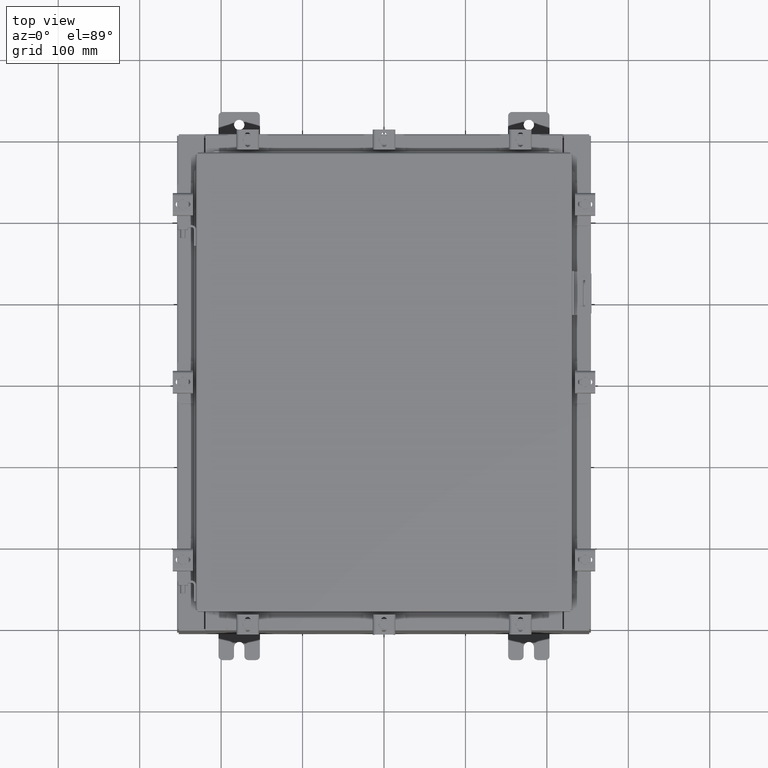
[diagram: clean part render]
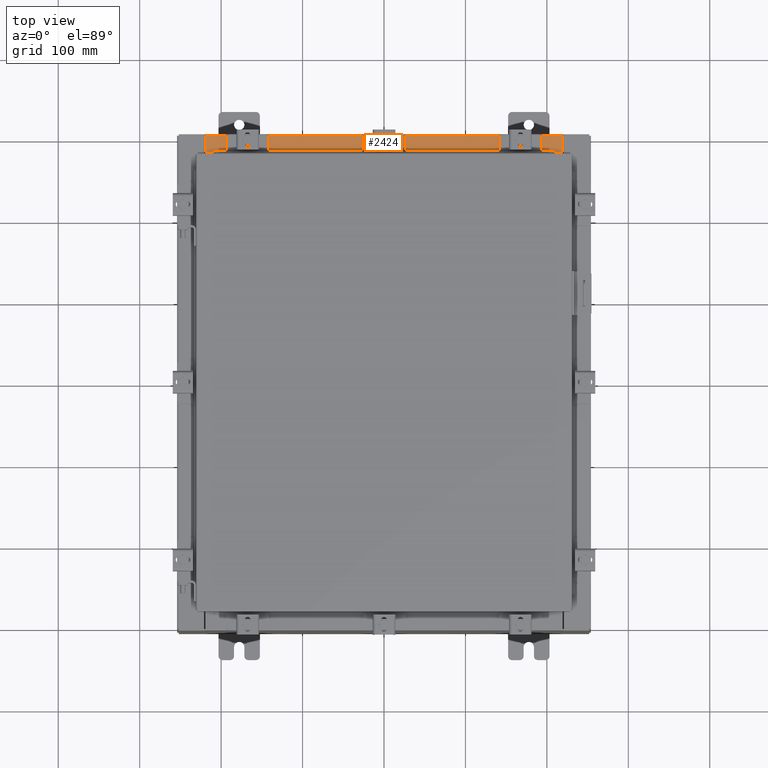
[diagram: same view with one face highlighted and labeled with its STEP entity id]
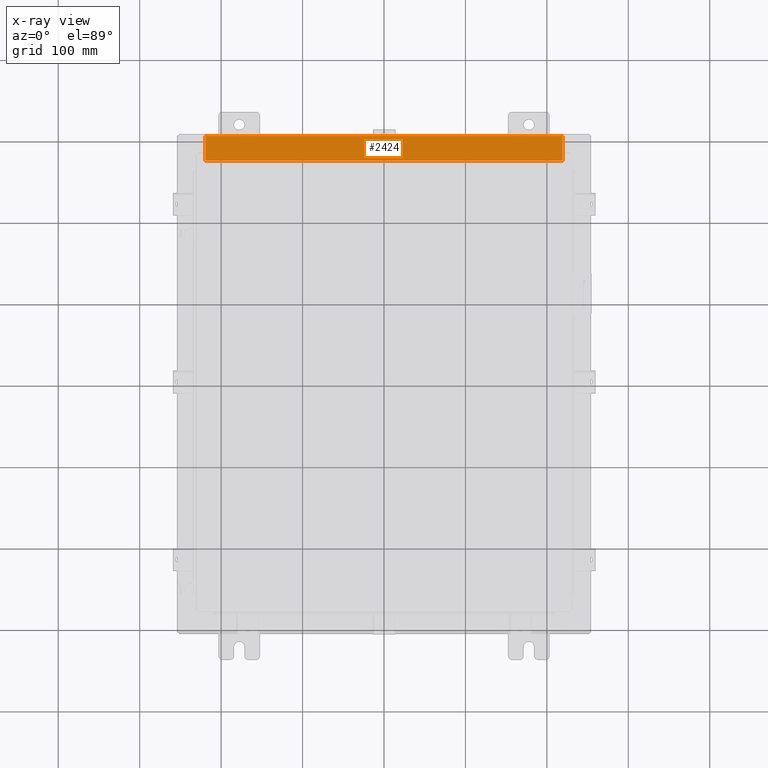
[diagram: x-ray of the same camera — body ghosted, the highlighted face saturated]
A machine part, top view. The second image highlights one B-rep face of the part: STEP entity #2424.
The next image is the same camera in x-ray: the body ghosted, the highlighted face saturated — about 0% of this face is hidden behind the body in this view.
In plain terms, the highlighted planar face has unit normal (0, 0, 1).
Its self-contained STEP definition (entity closure, byte-faithful):
#27 = CARTESIAN_POINT ( 'NONE',  ( -8.637200000000000000, -0.08770000000000081900, 5.000000000000000000 ) ) ;
#792 = DIRECTION ( 'NONE',  ( -0.0000000000000000000, 1.000000000000000000, -3.566381192773190000E-015 ) ) ;
#872 = CARTESIAN_POINT ( 'NONE',  ( 0.0000000000000000000, 1.782631094477737600E-014, 5.000000000000000000 ) ) ;
#918 = VERTEX_POINT ( 'NONE', #9299 ) ;
#1785 = EDGE_CURVE ( 'NONE', #10379, #3975, #16592, .T. ) ;
#1903 = CARTESIAN_POINT ( 'NONE',  ( 5.547702242495411600E-018, -0.08770000000000081900, 5.000000000000000000 ) ) ;
#2424 = ADVANCED_FACE ( 'NONE', ( #10185 ), #2620, .T. ) ;
#2620 = PLANE ( 'NONE',  #5874 ) ;
#3067 = ORIENTED_EDGE ( 'NONE', *, *, #16973, .F. ) ;
#3350 = VERTEX_POINT ( 'NONE', #27 ) ;
#3975 = VERTEX_POINT ( 'NONE', #11737 ) ;
#5874 = AXIS2_PLACEMENT_3D ( 'NONE', #872, #7846, #14825 ) ;
#7514 = CARTESIAN_POINT ( 'NONE',  ( 8.637200000000000000, -1.287299999999999900, 5.000000000000003600 ) ) ;
#7590 = VECTOR ( 'NONE', #13153, 39.37007874015748100 ) ;
#7846 = DIRECTION ( 'NONE',  ( 0.0000000000000000000, 3.566381192773190000E-015, 1.000000000000000000 ) ) ;
#8909 = ORIENTED_EDGE ( 'NONE', *, *, #16676, .T. ) ;
#9299 = CARTESIAN_POINT ( 'NONE',  ( 8.637200000000000000, -0.08770000000000047200, 5.000000000000000000 ) ) ;
#9922 = ORIENTED_EDGE ( 'NONE', *, *, #1785, .F. ) ;
#10185 = FACE_OUTER_BOUND ( 'NONE', #19269, .T. ) ;
#10379 = VERTEX_POINT ( 'NONE', #19011 ) ;
#10808 = VECTOR ( 'NONE', #792, 39.37007874015748100 ) ;
#11327 = LINE ( 'NONE', #14753, #10808 ) ;
#11391 = CARTESIAN_POINT ( 'NONE',  ( 8.637200000000000000, -1.300299999999999800, 5.000000000000004400 ) ) ;
#11737 = CARTESIAN_POINT ( 'NONE',  ( -8.637200000000000000, -1.287299999999999200, 5.000000000000004400 ) ) ;
#11923 = LINE ( 'NONE', #1903, #21237 ) ;
#12309 = DIRECTION ( 'NONE',  ( -1.000000000000000000, 0.0000000000000000000, 0.0000000000000000000 ) ) ;
#12739 = LINE ( 'NONE', #11391, #7590 ) ;
#13153 = DIRECTION ( 'NONE',  ( -0.0000000000000000000, -1.000000000000000000, 3.566381192773190000E-015 ) ) ;
#14753 = CARTESIAN_POINT ( 'NONE',  ( -8.637200000000000000, -0.07469999999999973900, 5.000000000000000000 ) ) ;
#14825 = DIRECTION ( 'NONE',  ( 0.0000000000000000000, -1.000000000000000000, 3.566381192773190000E-015 ) ) ;
#16592 = LINE ( 'NONE', #7514, #20684 ) ;
#16676 = EDGE_CURVE ( 'NONE', #918, #3350, #11923, .T. ) ;
#16973 = EDGE_CURVE ( 'NONE', #918, #10379, #12739, .T. ) ;
#17907 = ORIENTED_EDGE ( 'NONE', *, *, #20058, .F. ) ;
#19011 = CARTESIAN_POINT ( 'NONE',  ( 8.637200000000000000, -1.287299999999999900, 5.000000000000004400 ) ) ;
#19269 = EDGE_LOOP ( 'NONE', ( #17907, #9922, #3067, #8909 ) ) ;
#20058 = EDGE_CURVE ( 'NONE', #3975, #3350, #11327, .T. ) ;
#20684 = VECTOR ( 'NONE', #12309, 39.37007874015748100 ) ;
#21057 = DIRECTION ( 'NONE',  ( -1.000000000000000000, -6.325772226333218300E-017, 2.256011509776178200E-031 ) ) ;
#21237 = VECTOR ( 'NONE', #21057, 39.37007874015748100 ) ;